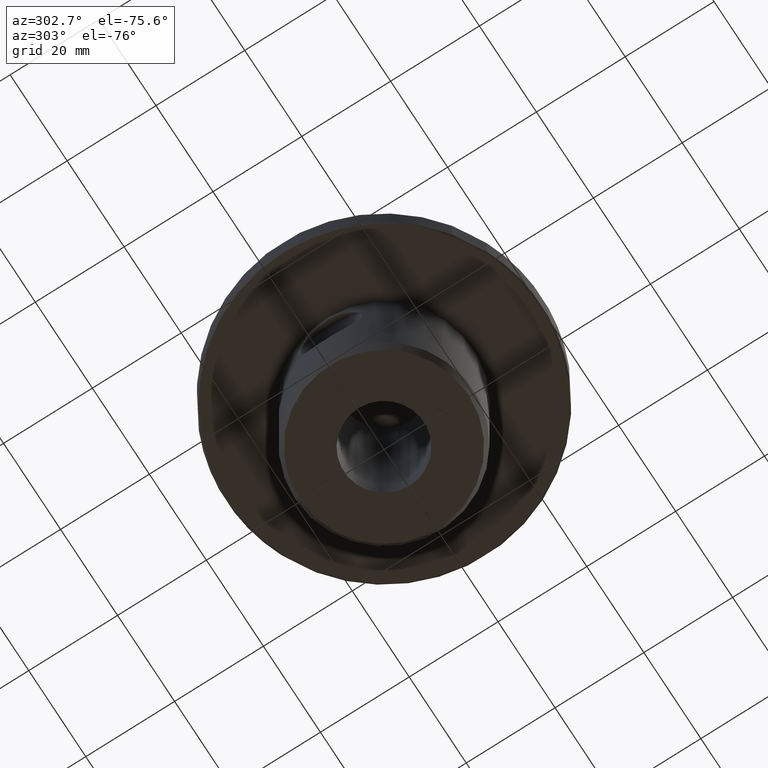
[diagram: clean part render]
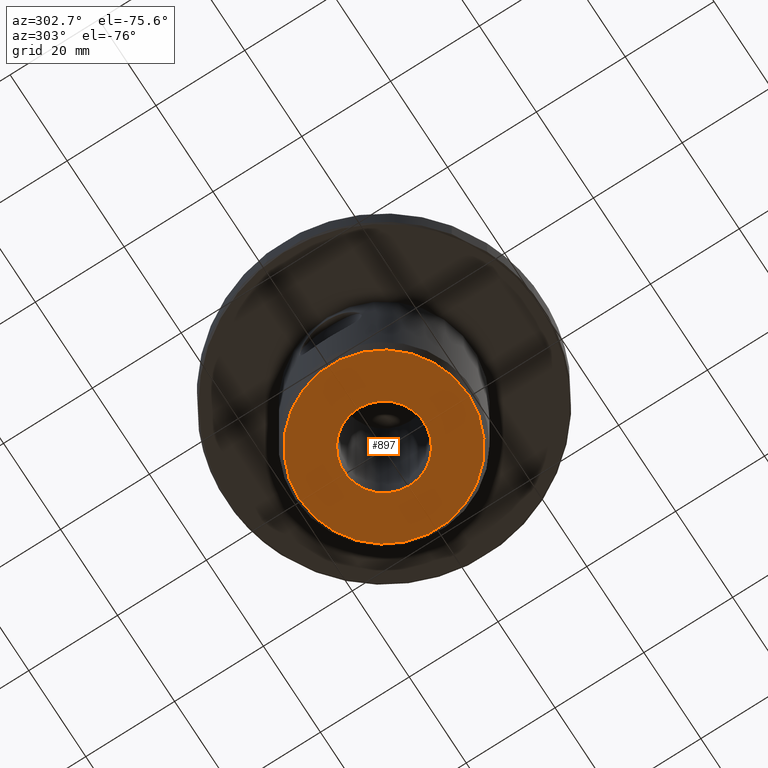
[diagram: same view with one face highlighted and labeled with its STEP entity id]
A machine part, auxiliary view. The second image highlights one B-rep face of the part: STEP entity #897.
In plain terms, the highlighted planar face has unit normal (-0, -0, -1).
Its self-contained STEP definition (entity closure, byte-faithful):
#167=ORIENTED_EDGE('',*,*,#417,.T.);
#168=ORIENTED_EDGE('',*,*,#418,.T.);
#417=EDGE_CURVE('',#542,#542,#633,.T.);
#418=EDGE_CURVE('',#543,#543,#634,.T.);
#542=VERTEX_POINT('',#1372);
#543=VERTEX_POINT('',#1374);
#633=CIRCLE('',#977,8.99999999999988);
#634=CIRCLE('',#978,19.);
#688=EDGE_LOOP('',(#167));
#689=EDGE_LOOP('',(#168));
#784=FACE_BOUND('',#688,.T.);
#785=FACE_BOUND('',#689,.T.);
#880=PLANE('',#976);
#897=ADVANCED_FACE('',(#784,#785),#880,.T.);
#976=AXIS2_PLACEMENT_3D('',#1370,#1099,#1100);
#977=AXIS2_PLACEMENT_3D('',#1371,#1101,#1102);
#978=AXIS2_PLACEMENT_3D('',#1373,#1103,#1104);
#1099=DIRECTION('',(-5.47430718319515E-16,-8.51929311524195E-24,-1.));
#1100=DIRECTION('',(-6.38378239159465E-16,1.,-3.83055215771257E-23));
#1101=DIRECTION('',(0.,0.,1.));
#1102=DIRECTION('',(1.,0.,0.));
#1103=DIRECTION('',(-5.47430718319515E-16,-8.51929311524195E-24,-1.));
#1104=DIRECTION('',(-6.38378239159465E-16,1.,-3.83055215771257E-23));
#1370=CARTESIAN_POINT('',(-1.28337731432713E-13,18.9999999999999,-41.));
#1371=CARTESIAN_POINT('',(0.,0.,-41.));
#1372=CARTESIAN_POINT('',(8.99999999999988,0.,-41.));
#1373=CARTESIAN_POINT('',(-1.16208544888683E-13,-9.81645355176211E-14,-41.));
#1374=CARTESIAN_POINT('',(-1.28337731432713E-13,18.9999999999999,-41.));